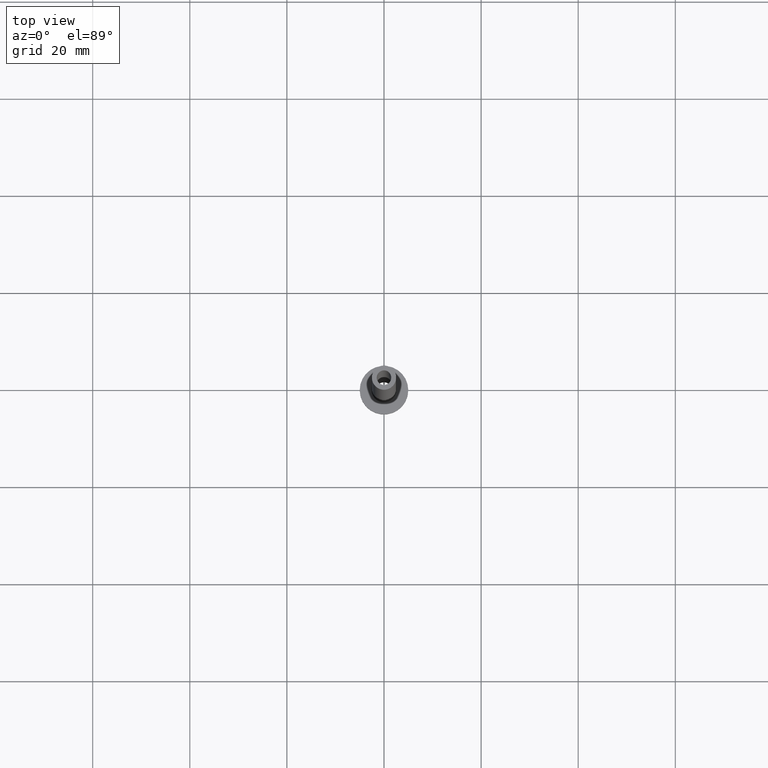
[diagram: clean part render]
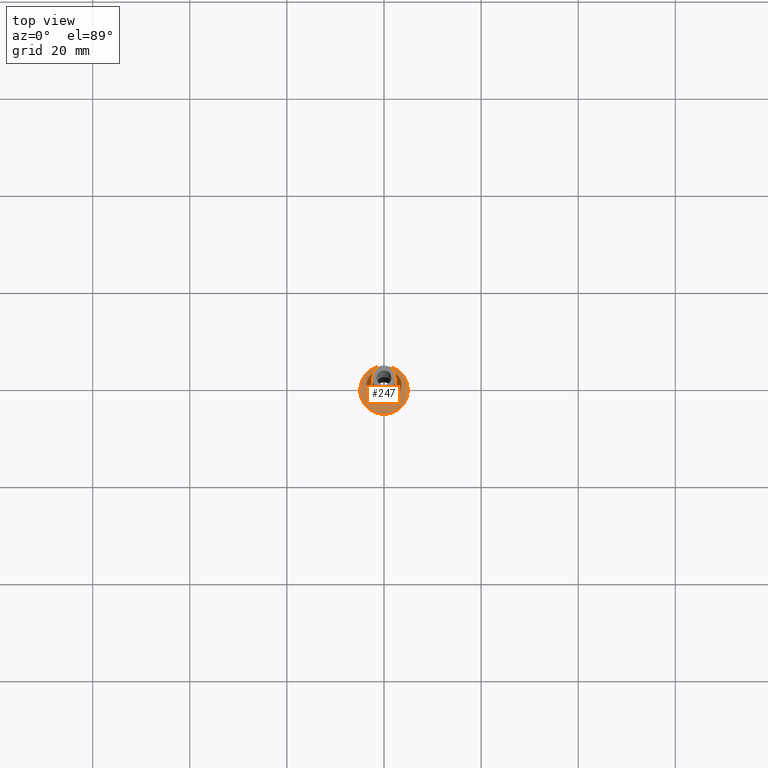
[diagram: same view with one face highlighted and labeled with its STEP entity id]
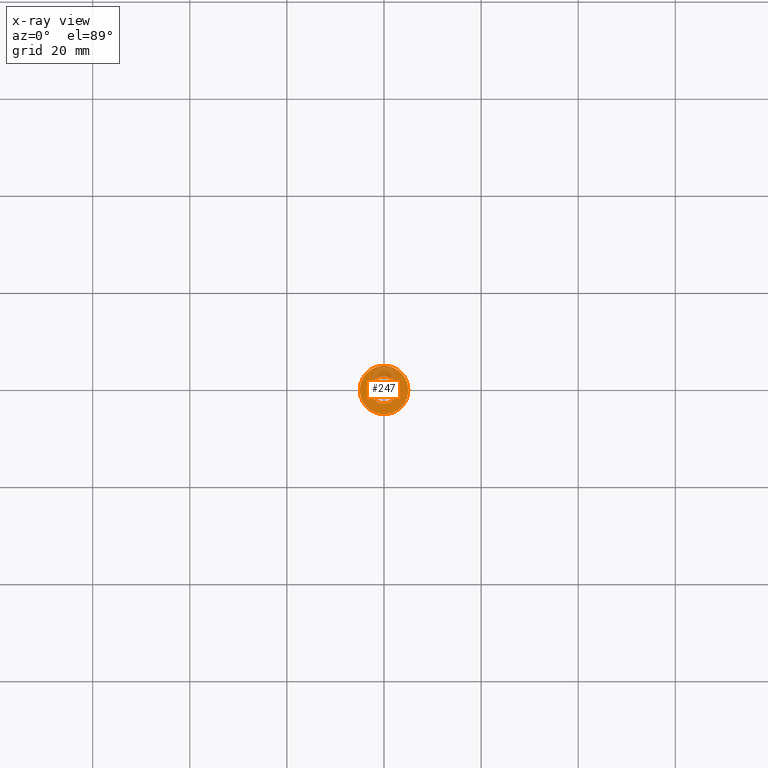
[diagram: x-ray of the same camera — body ghosted, the highlighted face saturated]
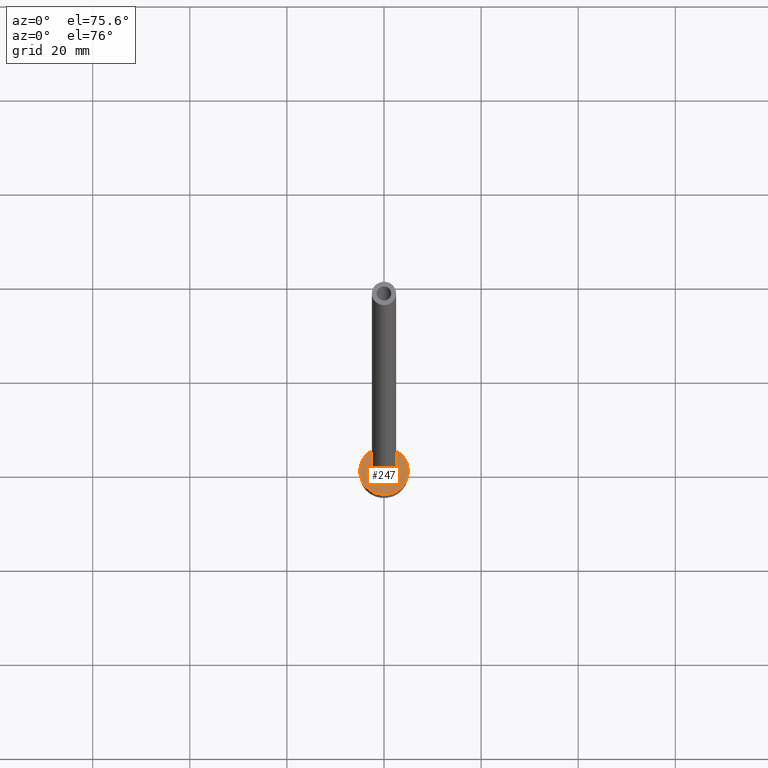
[diagram: same view with one face highlighted and labeled with its STEP entity id]
A machine part, top view. The second image highlights one B-rep face of the part: STEP entity #247.
The next image is the same camera in x-ray: the body ghosted, the highlighted face saturated — about 20% of this face is hidden behind the body in this view.
A second angle (auxiliary view) of the same face is appended — the face is thin or edge-on in the first view.
In plain terms, the highlighted planar face has unit normal (0, 0, 1).
Its self-contained STEP definition (entity closure, byte-faithful):
#5 = CARTESIAN_POINT ( 'NONE',  ( 2.799999999999999822, 0.000000000000000000, 2.999999999999998668 ) ) ;
#7 = VERTEX_POINT ( 'NONE', #337 ) ;
#34 = EDGE_CURVE ( 'NONE', #286, #7, #140, .T. ) ;
#45 = EDGE_LOOP ( 'NONE', ( #355, #403 ) ) ;
#80 = PLANE ( 'NONE',  #418 ) ;
#89 = CIRCLE ( 'NONE', #184, 2.799999999999999822 ) ;
#108 = DIRECTION ( 'NONE',  ( 0.000000000000000000, 0.000000000000000000, 1.000000000000000000 ) ) ;
#112 = CARTESIAN_POINT ( 'NONE',  ( 0.000000000000000000, 0.000000000000000000, 3.000000000000000000 ) ) ;
#136 = CARTESIAN_POINT ( 'NONE',  ( 0.000000000000000000, 0.000000000000000000, 3.000000000000000000 ) ) ;
#139 = DIRECTION ( 'NONE',  ( 1.000000000000000000, 0.000000000000000000, -0.000000000000000000 ) ) ;
#140 = CIRCLE ( 'NONE', #385, 2.799999999999999822 ) ;
#145 = CIRCLE ( 'NONE', #167, 5.000000000000000000 ) ;
#166 = CARTESIAN_POINT ( 'NONE',  ( 5.000000000000000000, 6.123233995736766282E-16, 3.000000000000000000 ) ) ;
#167 = AXIS2_PLACEMENT_3D ( 'NONE', #275, #202, #321 ) ;
#172 = FACE_BOUND ( 'NONE', #309, .T. ) ;
#177 = DIRECTION ( 'NONE',  ( 1.000000000000000000, 0.000000000000000000, 0.000000000000000000 ) ) ;
#184 = AXIS2_PLACEMENT_3D ( 'NONE', #136, #258, #351 ) ;
#192 = EDGE_CURVE ( 'NONE', #223, #267, #145, .T. ) ;
#202 = DIRECTION ( 'NONE',  ( 0.000000000000000000, 0.000000000000000000, 1.000000000000000000 ) ) ;
#215 = CARTESIAN_POINT ( 'NONE',  ( 0.000000000000000000, 0.000000000000000000, 3.000000000000000000 ) ) ;
#223 = VERTEX_POINT ( 'NONE', #417 ) ;
#229 = EDGE_CURVE ( 'NONE', #7, #286, #89, .T. ) ;
#247 = ADVANCED_FACE ( 'NONE', ( #172, #420 ), #80, .T. ) ;
#258 = DIRECTION ( 'NONE',  ( -0.000000000000000000, -0.000000000000000000, -1.000000000000000000 ) ) ;
#262 = CIRCLE ( 'NONE', #453, 5.000000000000000000 ) ;
#265 = DIRECTION ( 'NONE',  ( -0.000000000000000000, -0.000000000000000000, -1.000000000000000000 ) ) ;
#267 = VERTEX_POINT ( 'NONE', #166 ) ;
#274 = ORIENTED_EDGE ( 'NONE', *, *, #229, .T. ) ;
#275 = CARTESIAN_POINT ( 'NONE',  ( 0.000000000000000000, 0.000000000000000000, 3.000000000000000000 ) ) ;
#286 = VERTEX_POINT ( 'NONE', #5 ) ;
#307 = EDGE_CURVE ( 'NONE', #267, #223, #262, .T. ) ;
#309 = EDGE_LOOP ( 'NONE', ( #373, #274 ) ) ;
#321 = DIRECTION ( 'NONE',  ( 1.000000000000000000, 0.000000000000000000, 0.000000000000000000 ) ) ;
#337 = CARTESIAN_POINT ( 'NONE',  ( -2.799999999999999822, 3.429011037612589276E-16, 2.999999999999998668 ) ) ;
#351 = DIRECTION ( 'NONE',  ( 1.000000000000000000, 0.000000000000000000, 0.000000000000000000 ) ) ;
#355 = ORIENTED_EDGE ( 'NONE', *, *, #192, .T. ) ;
#360 = DIRECTION ( 'NONE',  ( 0.000000000000000000, 0.000000000000000000, 1.000000000000000000 ) ) ;
#373 = ORIENTED_EDGE ( 'NONE', *, *, #34, .T. ) ;
#385 = AXIS2_PLACEMENT_3D ( 'NONE', #112, #265, #399 ) ;
#399 = DIRECTION ( 'NONE',  ( 1.000000000000000000, 0.000000000000000000, 0.000000000000000000 ) ) ;
#403 = ORIENTED_EDGE ( 'NONE', *, *, #307, .T. ) ;
#417 = CARTESIAN_POINT ( 'NONE',  ( -5.000000000000000000, 0.000000000000000000, 3.000000000000000000 ) ) ;
#418 = AXIS2_PLACEMENT_3D ( 'NONE', #428, #108, #139 ) ;
#420 = FACE_OUTER_BOUND ( 'NONE', #45, .T. ) ;
#428 = CARTESIAN_POINT ( 'NONE',  ( 0.000000000000000000, 0.000000000000000000, 3.000000000000000000 ) ) ;
#453 = AXIS2_PLACEMENT_3D ( 'NONE', #215, #360, #177 ) ;